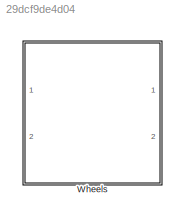
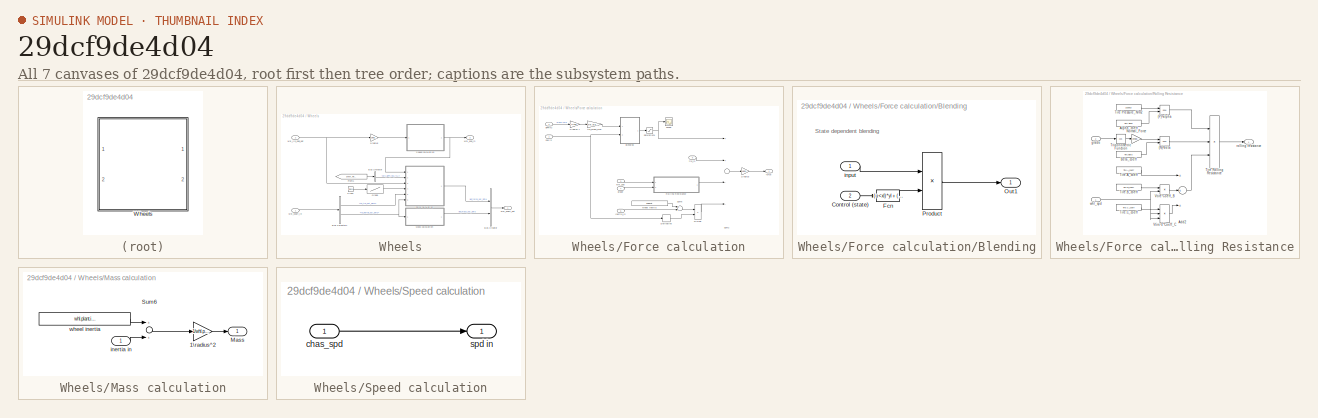
[diagram: thumbnail index - all 7 canvases of the model, root first then tree order]
MODEL slx_29dcf9de4d04
KIND library
CONFIG AbsTol = auto
CONFIG EnableMultiTasking = off
CONFIG FixedStep = auto
CONFIG MaxStep = auto
CONFIG MinStep = auto
CONFIG RelTol = 1e-3
CONFIG SampleTimeConstraint = Unconstrained
CONFIG Solver = VariableStepAuto
CONFIG SolverName = VariableStepAuto
CONFIG StartTime = 0.0
CONFIG StopTime = 10.0
BLOCK [SubSystem] Wheels
  Ports = [2, 2]
  RequestExecContextInheritance = off
  Variant = off
BLOCK [Gain] Wheels/1\radius 
  Gain = 1/whl.plant.init.radius
BLOCK [BusCreator] Wheels/Bus Creator
  DisplayOption = bar
  InheritFromInputs = on
  Inputs = 2
  Ports = [2, 1]
BLOCK [BusSelector] Wheels/Bus Selector
  OutputAsBus = off
  OutputSignals = drv_BPP_req_[%]
  Ports = [1, 1]
BLOCK [BusSelector] Wheels/Bus Selector1
  OutputAsBus = off
  OutputSignals = fd_trq_out_simu,fd_inertia_out_simu
  Ports = [1, 2]
BLOCK [Clock] Wheels/Clock
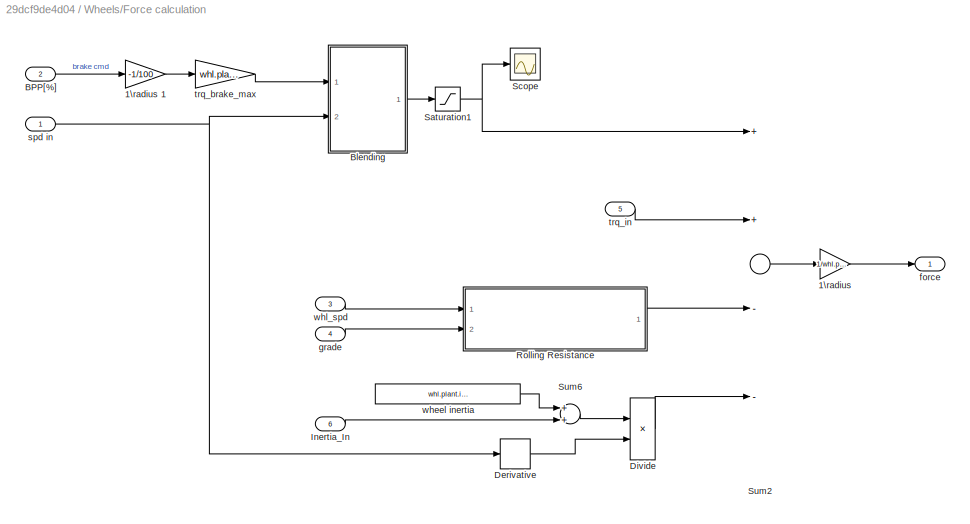
BLOCK [SubSystem] Wheels/Force calculation
  Ports = [6, 1]
  RequestExecContextInheritance = off
  Variant = off
BLOCK [Gain] Wheels/Force calculation/1\radius 
  Gain = 1/whl.plant.init.radius
BLOCK [Gain] Wheels/Force calculation/1\radius 1
  Gain = -1/100
BLOCK [Inport] Wheels/Force calculation/BPP[%]
  IconDisplay = Port number
  Port = 2
BLOCK [SubSystem] Wheels/Force calculation/Blending
  Ports = [2, 1]
  RequestExecContextInheritance = off
  ShowPortLabels = none
  Variant = off
BLOCK [Inport] Wheels/Force calculation/Blending/Control (state)
  IconDisplay = Port number
  Port = 2
BLOCK [Fcn] Wheels/Force calculation/Blending/Fcn
  Expr = (u<xl)*yl + (xl<=u)*(u<xc)*((yc-yl)*(u-xl)/(xc-xl)+yl) + (xc<=u)*(u<xr)*((yc-yr)*(u-xr)/(xc-xr)+yr) + (xr<=u)*yr
BLOCK [Outport] Wheels/Force calculation/Blending/Out1
  IconDisplay = Port number
BLOCK [Product] Wheels/Force calculation/Blending/Product
  Ports = [2, 1]
  RndMeth = Floor
BLOCK [Inport] Wheels/Force calculation/Blending/input
  IconDisplay = Port number
BLOCK [Derivative] Wheels/Force calculation/Derivative
BLOCK [Product] Wheels/Force calculation/Divide
  InputSameDT = off
  Inputs = **
  OutDataTypeStr = Inherit: Inherit via internal rule
  Ports = [2, 1]
  RndMeth = Floor
  SaturateOnIntegerOverflow = off
BLOCK [Inport] Wheels/Force calculation/Inertia_In
  IconDisplay = Port number
  Port = 6
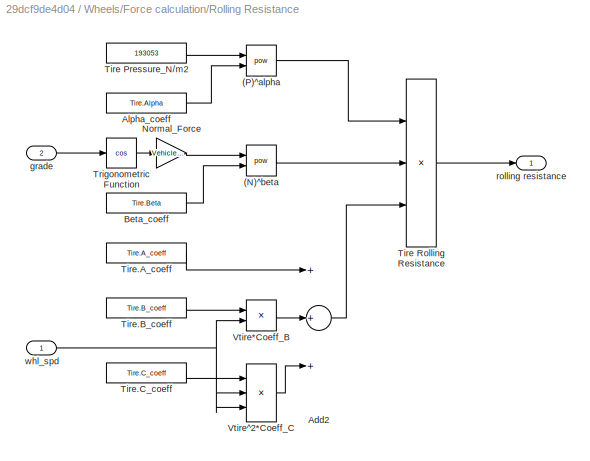
BLOCK [SubSystem] Wheels/Force calculation/Rolling Resistance
  Ports = [2, 1]
  RequestExecContextInheritance = off
  Variant = off
BLOCK [Math] Wheels/Force calculation/Rolling Resistance/(N)^beta
  Operator = pow
  Ports = [2, 1]
BLOCK [Math] Wheels/Force calculation/Rolling Resistance/(P)^alpha
  Operator = pow
  Ports = [2, 1]
BLOCK [Sum] Wheels/Force calculation/Rolling Resistance/Add2
  InputSameDT = off
  Inputs = +++
  OutDataTypeStr = Inherit: Inherit via internal rule
  Ports = [3, 1]
  SaturateOnIntegerOverflow = off
BLOCK [Constant] Wheels/Force calculation/Rolling Resistance/Alpha_coeff
  Value = Tire.Alpha
BLOCK [Constant] Wheels/Force calculation/Rolling Resistance/Beta_coeff
  Value = Tire.Beta
BLOCK [Gain] Wheels/Force calculation/Rolling Resistance/Normal_Force
  Gain = Vehicle.TestingMass*9.81
  OutDataTypeStr = Inherit: Inherit via internal rule
  ParamDataTypeStr = Inherit: Inherit via internal rule
  SaturateOnIntegerOverflow = off
BLOCK [Constant] Wheels/Force calculation/Rolling Resistance/Tire Pressure_N//m2
  Value = 193053
BLOCK [Product] Wheels/Force calculation/Rolling Resistance/Tire Rolling Resistance
  InputSameDT = off
  Inputs = ***
  OutDataTypeStr = Inherit: Inherit via internal rule
  Ports = [3, 1]
  RndMeth = Floor
  SaturateOnIntegerOverflow = off
BLOCK [Constant] Wheels/Force calculation/Rolling Resistance/Tire.A_coeff
  Value = Tire.A_coeff
BLOCK [Constant] Wheels/Force calculation/Rolling Resistance/Tire.B_coeff
  Value = Tire.B_coeff
BLOCK [Constant] Wheels/Force calculation/Rolling Resistance/Tire.C_coeff
  Value = Tire.C_coeff
BLOCK [Trigonometry] Wheels/Force calculation/Rolling Resistance/Trigonometric Function
  Operator = cos
  Ports = [1, 1]
BLOCK [Product] Wheels/Force calculation/Rolling Resistance/Vtire*Coeff_B
  InputSameDT = off
  Inputs = **
  OutDataTypeStr = Inherit: Inherit via internal rule
  Ports = [2, 1]
  RndMeth = Floor
  SaturateOnIntegerOverflow = off
BLOCK [Product] Wheels/Force calculation/Rolling Resistance/Vtire^2*Coeff_C
  InputSameDT = off
  Inputs = ***
  OutDataTypeStr = Inherit: Inherit via internal rule
  Ports = [3, 1]
  RndMeth = Floor
  SaturateOnIntegerOverflow = off
BLOCK [Inport] Wheels/Force calculation/Rolling Resistance/grade
  IconDisplay = Port number
  Port = 2
BLOCK [Outport] Wheels/Force calculation/Rolling Resistance/rolling resistance
  IconDisplay = Port number
BLOCK [Inport] Wheels/Force calculation/Rolling Resistance/whl_spd
  IconDisplay = Port number
BLOCK [Saturate] Wheels/Force calculation/Saturation1
  InputPortMap = u0
  LowerLimit = -inf
  Ports = [1, 1]
  UpperLimit = 0
BLOCK [Scope] Wheels/Force calculation/Scope
  NumInputPorts = 1
  Ports = [1]
  ScopeSpecificationString = Simulink.scopes.TimeScopeBlockCfg('CurrentConfiguration', extmgr.ConfigurationSet(extmgr.Configuration('Core','General UI',true),extmgr.Configuration('Core','Source UI',true),extmgr.Configuration('Sources','WiredSimulink',true,'DataLoggingVariableName','ScopeData5','DataLoggingSaveFormat','Array','DataLoggingDecimation','1','DataLoggingDecimateData',true),extmgr.Configuration('Visuals','Time Domai...<+864ch>
BLOCK [Sum] Wheels/Force calculation/Sum2
  Inputs = ++--
  Ports = [4, 1]
BLOCK [Sum] Wheels/Force calculation/Sum6
  Ports = [2, 1]
BLOCK [Outport] Wheels/Force calculation/force
  IconDisplay = Port number
BLOCK [Inport] Wheels/Force calculation/grade
  IconDisplay = Port number
  Port = 4
BLOCK [Inport] Wheels/Force calculation/spd in
  IconDisplay = Port number
BLOCK [Gain] Wheels/Force calculation/trq_brake_max
  Gain = whl.plant.init.trq_brake_max
  OutDataTypeStr = Inherit: Inherit via internal rule
  ParamDataTypeStr = Inherit: Inherit via internal rule
  SaturateOnIntegerOverflow = off
BLOCK [Inport] Wheels/Force calculation/trq_in
  IconDisplay = Port number
  Port = 5
BLOCK [Constant] Wheels/Force calculation/wheel inertia
  Value = whl.plant.init.inertia
BLOCK [Inport] Wheels/Force calculation/whl_spd
  IconDisplay = Port number
  Port = 3
BLOCK [From] Wheels/From1
  GotoTag = Driver_Request
  TagVisibility = global
BLOCK [Lookup] Wheels/Grade
  InputValues = time
  SaturateOnIntegerOverflow = off
  Table = Grade
BLOCK [SubSystem] Wheels/Mass calculation
  Ports = [1, 1]
  RequestExecContextInheritance = off
  Variant = off
BLOCK [Gain] Wheels/Mass calculation/1\radius^2
  Gain = 1/whl.plant.init.radius^2
BLOCK [Outport] Wheels/Mass calculation/Mass
  IconDisplay = Port number
BLOCK [Sum] Wheels/Mass calculation/Sum6
  Ports = [2, 1]
BLOCK [Inport] Wheels/Mass calculation/inertia in
  IconDisplay = Port number
BLOCK [Constant] Wheels/Mass calculation/wheel inertia
  Value = whl.plant.init.inertia
BLOCK [SubSystem] Wheels/Speed calculation
  Ports = [1, 1]
  RequestExecContextInheritance = off
  Variant = off
BLOCK [Inport] Wheels/Speed calculation/chas_spd
  IconDisplay = Port number
BLOCK [Outport] Wheels/Speed calculation/spd in
  IconDisplay = Port number
BLOCK [Inport] Wheels/whl_lin_spd_out
  IconDisplay = Port number
  Port = 2
BLOCK [Inport] Wheels/whl_shaft_in
  IconDisplay = Port number
BLOCK [Outport] Wheels/whl_shaft_out
  IconDisplay = Port number
BLOCK [Outport] Wheels/whl_spd_in
  IconDisplay = Port number
  Port = 2
ANNOTATION Wheels/Force calculation/Blending: State dependent blending
LINE Wheels/1\radius :1 -> Wheels/Speed calculation:1
LINE Wheels/Bus Creator:1 -> Wheels/whl_shaft_out:1
LINE Wheels/Bus Selector1:1 -> Wheels/Force calculation:5
NET Wheels/Bus Selector1:2 -> Wheels/Force calculation:6, Wheels/Mass calculation:1
LINE Wheels/Bus Selector:1 -> Wheels/Force calculation:2
LINE Wheels/Clock:1 -> Wheels/Grade:1
LINE Wheels/Force calculation/1\radius 1:1 -> Wheels/Force calculation/trq_brake_max:1
LINE Wheels/Force calculation/1\radius :1 -> Wheels/Force calculation/force:1
LINE Wheels/Force calculation/BPP[%]:1 -> Wheels/Force calculation/1\radius 1:1
LINE Wheels/Force calculation/Blending/Control (state):1 -> Wheels/Force calculation/Blending/Fcn:1
LINE Wheels/Force calculation/Blending/Fcn:1 -> Wheels/Force calculation/Blending/Product:2
LINE Wheels/Force calculation/Blending/Product:1 -> Wheels/Force calculation/Blending/Out1:1
LINE Wheels/Force calculation/Blending/input:1 -> Wheels/Force calculation/Blending/Product:1
LINE Wheels/Force calculation/Blending:1 -> Wheels/Force calculation/Saturation1:1
LINE Wheels/Force calculation/Derivative:1 -> Wheels/Force calculation/Divide:2
LINE Wheels/Force calculation/Divide:1 -> Wheels/Force calculation/Sum2:4
LINE Wheels/Force calculation/Inertia_In:1 -> Wheels/Force calculation/Sum6:2
LINE Wheels/Force calculation/Rolling Resistance/(N)^beta:1 -> Wheels/Force calculation/Rolling Resistance/Tire Rolling Resistance:2
LINE Wheels/Force calculation/Rolling Resistance/(P)^alpha:1 -> Wheels/Force calculation/Rolling Resistance/Tire Rolling Resistance:1
LINE Wheels/Force calculation/Rolling Resistance/Add2:1 -> Wheels/Force calculation/Rolling Resistance/Tire Rolling Resistance:3
LINE Wheels/Force calculation/Rolling Resistance/Alpha_coeff:1 -> Wheels/Force calculation/Rolling Resistance/(P)^alpha:2
LINE Wheels/Force calculation/Rolling Resistance/Beta_coeff:1 -> Wheels/Force calculation/Rolling Resistance/(N)^beta:2
LINE Wheels/Force calculation/Rolling Resistance/Normal_Force:1 -> Wheels/Force calculation/Rolling Resistance/(N)^beta:1
LINE Wheels/Force calculation/Rolling Resistance/Tire Pressure_N//m2:1 -> Wheels/Force calculation/Rolling Resistance/(P)^alpha:1
LINE Wheels/Force calculation/Rolling Resistance/Tire Rolling Resistance:1 -> Wheels/Force calculation/Rolling Resistance/rolling resistance:1
LINE Wheels/Force calculation/Rolling Resistance/Tire.A_coeff:1 -> Wheels/Force calculation/Rolling Resistance/Add2:1
LINE Wheels/Force calculation/Rolling Resistance/Tire.B_coeff:1 -> Wheels/Force calculation/Rolling Resistance/Vtire*Coeff_B:1
LINE Wheels/Force calculation/Rolling Resistance/Tire.C_coeff:1 -> Wheels/Force calculation/Rolling Resistance/Vtire^2*Coeff_C:1
LINE Wheels/Force calculation/Rolling Resistance/Trigonometric Function:1 -> Wheels/Force calculation/Rolling Resistance/Normal_Force:1
LINE Wheels/Force calculation/Rolling Resistance/Vtire*Coeff_B:1 -> Wheels/Force calculation/Rolling Resistance/Add2:2
LINE Wheels/Force calculation/Rolling Resistance/Vtire^2*Coeff_C:1 -> Wheels/Force calculation/Rolling Resistance/Add2:3
LINE Wheels/Force calculation/Rolling Resistance/grade:1 -> Wheels/Force calculation/Rolling Resistance/Trigonometric Function:1
NET Wheels/Force calculation/Rolling Resistance/whl_spd:1 -> Wheels/Force calculation/Rolling Resistance/Vtire*Coeff_B:2, Wheels/Force calculation/Rolling Resistance/Vtire^2*Coeff_C:2, Wheels/Force calculation/Rolling Resistance/Vtire^2*Coeff_C:3
LINE Wheels/Force calculation/Rolling Resistance:1 -> Wheels/Force calculation/Sum2:3
NET Wheels/Force calculation/Saturation1:1 -> Wheels/Force calculation/Scope:1, Wheels/Force calculation/Sum2:1
LINE Wheels/Force calculation/Sum2:1 -> Wheels/Force calculation/1\radius :1
LINE Wheels/Force calculation/Sum6:1 -> Wheels/Force calculation/Divide:1
LINE Wheels/Force calculation/grade:1 -> Wheels/Force calculation/Rolling Resistance:2
NET Wheels/Force calculation/spd in:1 -> Wheels/Force calculation/Blending:2, Wheels/Force calculation/Derivative:1
LINE Wheels/Force calculation/trq_brake_max:1 -> Wheels/Force calculation/Blending:1
LINE Wheels/Force calculation/trq_in:1 -> Wheels/Force calculation/Sum2:2
LINE Wheels/Force calculation/wheel inertia:1 -> Wheels/Force calculation/Sum6:1
LINE Wheels/Force calculation/whl_spd:1 -> Wheels/Force calculation/Rolling Resistance:1
LINE Wheels/Force calculation:1 -> Wheels/Bus Creator:1
LINE Wheels/From1:1 -> Wheels/Bus Selector:1
LINE Wheels/Grade:1 -> Wheels/Force calculation:4
LINE Wheels/Mass calculation/1\radius^2:1 -> Wheels/Mass calculation/Mass:1
LINE Wheels/Mass calculation/Sum6:1 -> Wheels/Mass calculation/1\radius^2:1
LINE Wheels/Mass calculation/inertia in:1 -> Wheels/Mass calculation/Sum6:2
LINE Wheels/Mass calculation/wheel inertia:1 -> Wheels/Mass calculation/Sum6:1
LINE Wheels/Mass calculation:1 -> Wheels/Bus Creator:2
LINE Wheels/Speed calculation/chas_spd:1 -> Wheels/Speed calculation/spd in:1
NET Wheels/Speed calculation:1 -> Wheels/Force calculation:1, Wheels/whl_spd_in:1
NET Wheels/whl_lin_spd_out:1 -> Wheels/1\radius :1, Wheels/Force calculation:3
LINE Wheels/whl_shaft_in:1 -> Wheels/Bus Selector1:1
note: NET lines group one-source signal fan-out (src -> all destinations, sorted); 1:1 wires keep LINE
